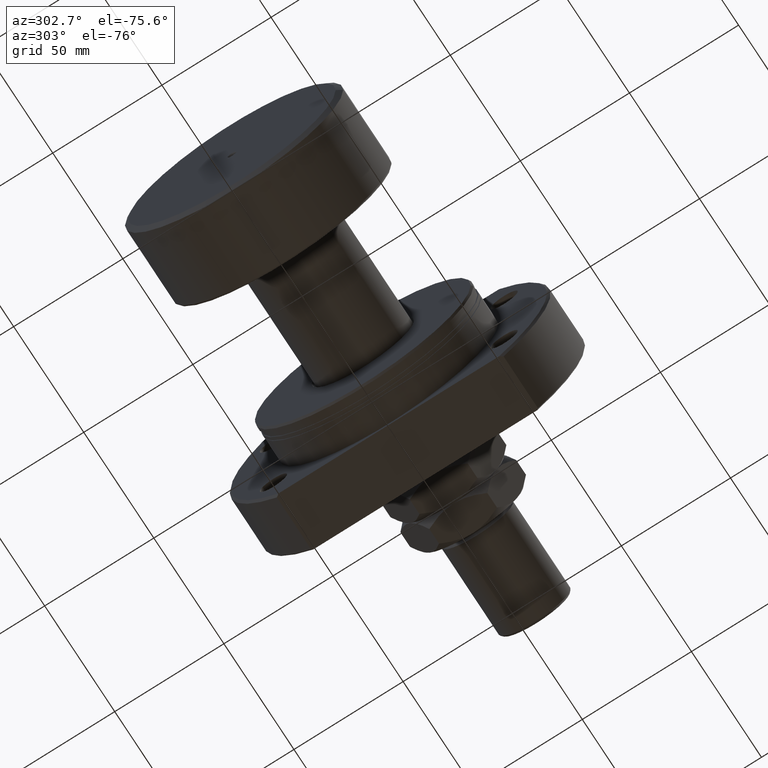
[diagram: clean part render]
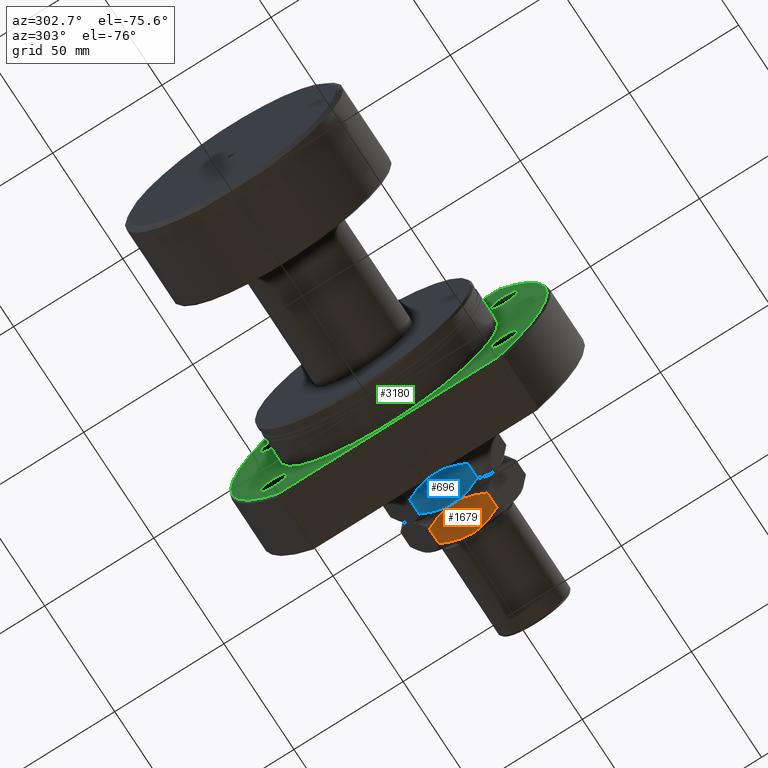
[diagram: same view with three faces highlighted in distinct colors, each labeled with its STEP entity id]
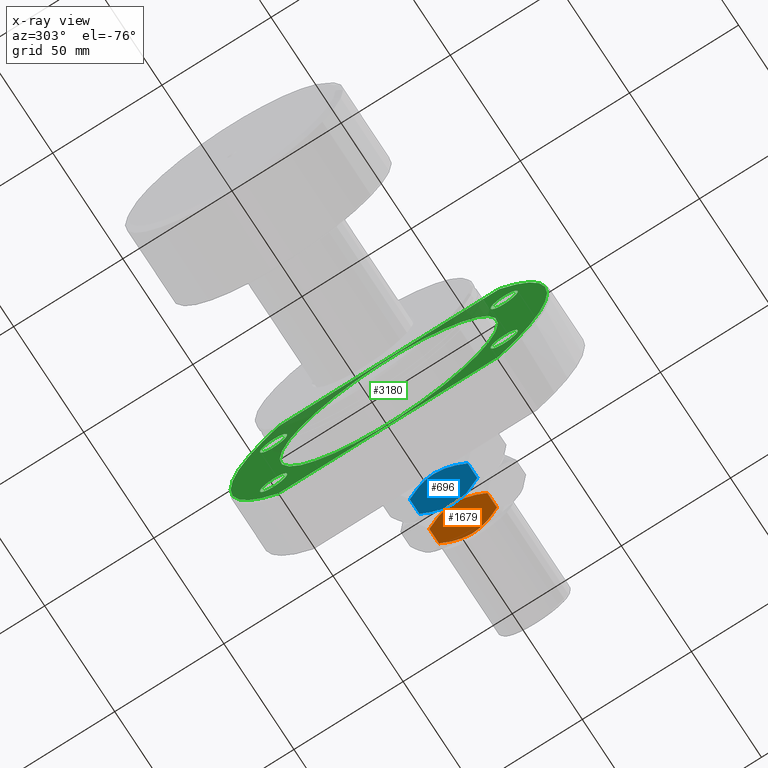
[diagram: x-ray of the same camera — body ghosted, the three highlighted faces saturated]
A machine part, auxiliary view with three faces highlighted in distinct colors.
The next image is the same camera in x-ray (body ghosted, the three faces saturated) — at least one of them is partly hidden behind the body in this view.
Their STEP definitions:

[orange] entity #1679 — the highlighted planar face has unit normal (-0, 0, 1).
#28 = DIRECTION ( 'NONE',  ( -0.000000000000000000, -0.000000000000000000, -1.000000000000000000 ) ) ;
#43 = ORIENTED_EDGE ( 'NONE', *, *, #3921, .F. ) ;
#214 = CARTESIAN_POINT ( 'NONE',  ( 23.00000000000000000, -13.27905619136138959, 28.00000000000000000 ) ) ;
#253 = EDGE_LOOP ( 'NONE', ( #43, #294, #4443, #4006, #2214, #3666 ) ) ;
#264 = CARTESIAN_POINT ( 'NONE',  ( 23.00000000000000355, 4.604003285773385024, 14.35917286671931059 ) ) ;
#294 = ORIENTED_EDGE ( 'NONE', *, *, #1350, .F. ) ;
#470 = VERTEX_POINT ( 'NONE', #1252 ) ;
#565 = B_SPLINE_CURVE_WITH_KNOTS ( 'NONE', 3,
 ( #1824, #1435, #2893, #4758, #2127, #4383, #2523, #264, #642, #3717 ),
 .UNSPECIFIED., .F., .F.,
 ( 4, 2, 2, 2, 4 ),
 ( 0.03391842154671734916, 0.03738166515001972723, 0.03911328695167091973, 0.04084490875332210530, 0.04777139595992687532 ),
 .UNSPECIFIED. ) ;
#642 = CARTESIAN_POINT ( 'NONE',  ( 23.00000000000000355, 2.332866569036886606, 14.00000000000000355 ) ) ;
#651 = CARTESIAN_POINT ( 'NONE',  ( 23.00000000000000000, -13.27905619136138782, 17.55811238272277564 ) ) ;
#654 = CARTESIAN_POINT ( 'NONE',  ( 23.00000000000000000, 13.27905619136138959, 24.44188761727722436 ) ) ;
#698 = CARTESIAN_POINT ( 'NONE',  ( 23.00000000000000000, 13.27905619136138959, 17.55811238272277564 ) ) ;
#700 = CARTESIAN_POINT ( 'NONE',  ( 23.00000000000000355, -4.611258391204995810, 14.43061535182026667 ) ) ;
#731 = CARTESIAN_POINT ( 'NONE',  ( 22.99999999999999289, -9.585014738077486385, 26.08755915768734468 ) ) ;
#754 = CARTESIAN_POINT ( 'NONE',  ( 23.00000000000000000, -12.24963129209447565, 24.95660006691067778 ) ) ;
#852 = CARTESIAN_POINT ( 'NONE',  ( 23.00000000000000000, 1.168850493887465758, 27.97756288437166461 ) ) ;
#880 = CARTESIAN_POINT ( 'NONE',  ( 23.00000000000000355, 11.19584287463890782, 25.43887941699775368 ) ) ;
#907 = LINE ( 'NONE', #3210, #2441 ) ;
#984 = DIRECTION ( 'NONE',  ( -1.000000000000000000, 0.000000000000000000, 0.000000000000000000 ) ) ;
#1096 = CARTESIAN_POINT ( 'NONE',  ( 23.00000000000000000, -13.27905619136138959, 24.44188761727722792 ) ) ;
#1135 = LINE ( 'NONE', #2248, #1340 ) ;
#1194 = B_SPLINE_CURVE_WITH_KNOTS ( 'NONE', 3,
 ( #3677, #2927, #3231, #3307, #4091, #700, #2206, #2182, #4813, #1422, #4067, #651 ),
 .UNSPECIFIED., .F., .F.,
 ( 4, 2, 2, 2, 2, 4 ),
 ( 0.04777139595992687532, 0.04949914554651194121, 0.05122689513309700016, 0.05468239430626712499, 0.05813789347943724983, 0.06159339265260737467 ),
 .UNSPECIFIED. ) ;
#1252 = CARTESIAN_POINT ( 'NONE',  ( 22.99999999999999645, 0.000000000000000000, 14.00000000000000000 ) ) ;
#1271 = CARTESIAN_POINT ( 'NONE',  ( 22.99999999999999645, 0.000000000000000000, 28.00000000000000000 ) ) ;
#1340 = VECTOR ( 'NONE', #28, 1000.000000000000000 ) ;
#1350 = EDGE_CURVE ( 'NONE', #1506, #1897, #907, .T. ) ;
#1355 = PLANE ( 'NONE',  #4031 ) ;
#1422 = CARTESIAN_POINT ( 'NONE',  ( 23.00000000000000355, -11.19584287463890959, 16.56112058300224632 ) ) ;
#1435 = CARTESIAN_POINT ( 'NONE',  ( 22.99999999999999289, 12.24963129209448276, 17.04339993308932222 ) ) ;
#1506 = VERTEX_POINT ( 'NONE', #654 ) ;
#1579 = EDGE_CURVE ( 'NONE', #1588, #3299, #4141, .T. ) ;
#1588 = VERTEX_POINT ( 'NONE', #3012 ) ;
#1667 = CARTESIAN_POINT ( 'NONE',  ( 23.00000000000000000, 2.901718448039539044, 27.82452852895291429 ) ) ;
#1679 = ADVANCED_FACE ( 'NONE', ( #2791 ), #1355, .F. ) ;
#1815 = CARTESIAN_POINT ( 'NONE',  ( 23.00000000000000000, -9.038140464506012606, 26.29329459371818345 ) ) ;
#1824 = CARTESIAN_POINT ( 'NONE',  ( 23.00000000000000000, 13.27905619136138959, 17.55811238272277564 ) ) ;
#1859 = CARTESIAN_POINT ( 'NONE',  ( 22.99999999999999645, 0.000000000000000000, 28.00000000000000000 ) ) ;
#1897 = VERTEX_POINT ( 'NONE', #698 ) ;
#2071 = EDGE_CURVE ( 'NONE', #3299, #1506, #4789, .T. ) ;
#2127 = CARTESIAN_POINT ( 'NONE',  ( 23.00000000000000355, 9.038140464506014382, 15.70670540628181477 ) ) ;
#2182 = CARTESIAN_POINT ( 'NONE',  ( 23.00000000000000355, -7.945847288453419921, 15.31073039083534226 ) ) ;
#2185 = CARTESIAN_POINT ( 'NONE',  ( 23.00000000000000000, -7.937214062685161942, 26.67444397236640086 ) ) ;
#2206 = CARTESIAN_POINT ( 'NONE',  ( 23.00000000000000711, -5.732845801352522308, 14.67996292198422736 ) ) ;
#2214 = ORIENTED_EDGE ( 'NONE', *, *, #3409, .T. ) ;
#2233 = CARTESIAN_POINT ( 'NONE',  ( 23.00000000000000711, -2.332866569036887938, 27.99999999999999645 ) ) ;
#2248 = CARTESIAN_POINT ( 'NONE',  ( 23.00000000000000000, -13.27905619136138959, 28.00000000000000000 ) ) ;
#2260 = CARTESIAN_POINT ( 'NONE',  ( 22.99999999999999645, -7.384104261058114460, 26.84961951312581618 ) ) ;
#2356 = CARTESIAN_POINT ( 'NONE',  ( 22.99999999999999289, 2.327345773459494005, 27.88976552227909878 ) ) ;
#2383 = CARTESIAN_POINT ( 'NONE',  ( 23.00000000000000711, 12.24912306375522242, 24.95685418108031328 ) ) ;
#2405 = CARTESIAN_POINT ( 'NONE',  ( 23.00000000000000000, 5.732845801352522308, 27.32003707801577619 ) ) ;
#2441 = VECTOR ( 'NONE', #3655, 1000.000000000000000 ) ;
#2523 = CARTESIAN_POINT ( 'NONE',  ( 23.00000000000000711, 7.384104261058126895, 15.15038048687418559 ) ) ;
#2608 = CARTESIAN_POINT ( 'NONE',  ( 22.99999999999999645, -11.20010744839417427, 25.43691701641144221 ) ) ;
#2727 = CARTESIAN_POINT ( 'NONE',  ( 23.00000000000000711, 0.5819124658698872077, 28.00000000000000000 ) ) ;
#2777 = CARTESIAN_POINT ( 'NONE',  ( 23.00000000000000355, 4.611258391204997586, 27.56938464817973511 ) ) ;
#2791 = FACE_OUTER_BOUND ( 'NONE', #253, .T. ) ;
#2893 = CARTESIAN_POINT ( 'NONE',  ( 23.00000000000000000, 11.20010744839417782, 16.56308298358856135 ) ) ;
#2895 = CARTESIAN_POINT ( 'NONE',  ( 22.99999999999999645, 0.000000000000000000, 28.00000000000000000 ) ) ;
#2927 = CARTESIAN_POINT ( 'NONE',  ( 23.00000000000001066, -0.5819124658698887620, 14.00000000000000711 ) ) ;
#2932 = EDGE_CURVE ( 'NONE', #470, #4366, #1194, .T. ) ;
#3012 = CARTESIAN_POINT ( 'NONE',  ( 23.00000000000000000, -13.27905619136138959, 24.44188761727722792 ) ) ;
#3210 = CARTESIAN_POINT ( 'NONE',  ( 23.00000000000000000, 13.27905619136138959, 28.00000000000000000 ) ) ;
#3231 = CARTESIAN_POINT ( 'NONE',  ( 23.00000000000000000, -1.168850493887471087, 14.02243711562833184 ) ) ;
#3299 = VERTEX_POINT ( 'NONE', #2895 ) ;
#3307 = CARTESIAN_POINT ( 'NONE',  ( 23.00000000000000000, -2.327345773459499334, 14.11023447772089945 ) ) ;
#3409 = EDGE_CURVE ( 'NONE', #1588, #4366, #1135, .T. ) ;
#3522 = CARTESIAN_POINT ( 'NONE',  ( 23.00000000000000355, 9.037287856520077156, 26.30796566528420399 ) ) ;
#3655 = DIRECTION ( 'NONE',  ( -0.000000000000000000, -0.000000000000000000, -1.000000000000000000 ) ) ;
#3666 = ORIENTED_EDGE ( 'NONE', *, *, #2932, .F. ) ;
#3677 = CARTESIAN_POINT ( 'NONE',  ( 22.99999999999999645, 0.000000000000000000, 14.00000000000000000 ) ) ;
#3717 = CARTESIAN_POINT ( 'NONE',  ( 22.99999999999999645, 0.000000000000000000, 14.00000000000000000 ) ) ;
#3728 = CARTESIAN_POINT ( 'NONE',  ( 23.00000000000000000, -13.27905619136138782, 17.55811238272277564 ) ) ;
#3778 = CARTESIAN_POINT ( 'NONE',  ( 23.00000000000000711, -4.604003285773378806, 27.64082713328069119 ) ) ;
#3921 = EDGE_CURVE ( 'NONE', #1897, #470, #565, .T. ) ;
#3923 = CARTESIAN_POINT ( 'NONE',  ( 22.99999999999999645, 7.945847288453418145, 26.68926960916466129 ) ) ;
#4006 = ORIENTED_EDGE ( 'NONE', *, *, #1579, .F. ) ;
#4011 = DIRECTION ( 'NONE',  ( 0.000000000000000000, 0.000000000000000000, 1.000000000000000000 ) ) ;
#4031 = AXIS2_PLACEMENT_3D ( 'NONE', #214, #984, #4011 ) ;
#4067 = CARTESIAN_POINT ( 'NONE',  ( 23.00000000000000711, -12.24912306375521531, 17.04314581891969382 ) ) ;
#4091 = CARTESIAN_POINT ( 'NONE',  ( 23.00000000000000355, -2.901718448039537712, 14.17547147104708571 ) ) ;
#4141 = B_SPLINE_CURVE_WITH_KNOTS ( 'NONE', 3,
 ( #1096, #754, #2608, #731, #1815, #2185, #2260, #3778, #2233, #1859 ),
 .UNSPECIFIED., .F., .F.,
 ( 4, 2, 2, 2, 4 ),
 ( 0.03391842154671734916, 0.03738166515001972723, 0.03911328695167091973, 0.04084490875332210530, 0.04777139595992686838 ),
 .UNSPECIFIED. ) ;
#4366 = VERTEX_POINT ( 'NONE', #3728 ) ;
#4383 = CARTESIAN_POINT ( 'NONE',  ( 23.00000000000001066, 7.937214062685167271, 15.32555602763360092 ) ) ;
#4443 = ORIENTED_EDGE ( 'NONE', *, *, #2071, .F. ) ;
#4689 = CARTESIAN_POINT ( 'NONE',  ( 23.00000000000000000, 13.27905619136138959, 24.44188761727722436 ) ) ;
#4758 = CARTESIAN_POINT ( 'NONE',  ( 22.99999999999999289, 9.585014738077491714, 15.91244084231266420 ) ) ;
#4789 = B_SPLINE_CURVE_WITH_KNOTS ( 'NONE', 3,
 ( #1271, #2727, #852, #2356, #1667, #2777, #2405, #3923, #3522, #880, #2383, #4689 ),
 .UNSPECIFIED., .F., .F.,
 ( 4, 2, 2, 2, 2, 4 ),
 ( 0.04777139595992686838, 0.04949914554651193427, 0.05122689513309699322, 0.05468239430626712499, 0.05813789347943724983, 0.06159339265260738161 ),
 .UNSPECIFIED. ) ;
#4813 = CARTESIAN_POINT ( 'NONE',  ( 23.00000000000000355, -9.037287856520078932, 15.69203433471579778 ) ) ;

[blue] entity #696 — the highlighted planar face has unit normal (-0, 0, 1).
#10 = ORIENTED_EDGE ( 'NONE', *, *, #1526, .F. ) ;
#51 = CARTESIAN_POINT ( 'NONE',  ( 23.00000000000000000, -2.901297070256888322, 0.1754240326198526490 ) ) ;
#287 = ORIENTED_EDGE ( 'NONE', *, *, #4059, .F. ) ;
#293 = AXIS2_PLACEMENT_3D ( 'NONE', #1785, #4439, #3698 ) ;
#322 = FACE_OUTER_BOUND ( 'NONE', #1117, .T. ) ;
#325 = CARTESIAN_POINT ( 'NONE',  ( 23.00000000000000355, 4.610166311818702845, 13.56957851360674283 ) ) ;
#328 = CARTESIAN_POINT ( 'NONE',  ( 23.00000000000000355, 7.935615110598574162, 1.325049712495167231 ) ) ;
#397 = CARTESIAN_POINT ( 'NONE',  ( 23.00000000000000355, -9.036340143478451381, 1.691672435289179210 ) ) ;
#429 = B_SPLINE_CURVE_WITH_KNOTS ( 'NONE', 3,
 ( #1001, #2509, #1024, #2534, #4027, #325, #2624, #1119, #3446, #4170, #4117, #3058 ),
 .UNSPECIFIED., .F., .F.,
 ( 4, 2, 2, 2, 2, 4 ),
 ( 0.04844648401189700221, 0.05017495495687852858, 0.05190342590186006189, 0.05536036779182312156, 0.05881730968178618124, 0.06227425157174924786 ),
 .UNSPECIFIED. ) ;
#470 = VERTEX_POINT ( 'NONE', #1252 ) ;
#657 = CARTESIAN_POINT ( 'NONE',  ( 23.00000000000000355, -7.383193414690654599, 12.84988593970195225 ) ) ;
#696 = ADVANCED_FACE ( 'NONE', ( #322 ), #1742, .F. ) ;
#721 = VERTEX_POINT ( 'NONE', #3651 ) ;
#727 = EDGE_CURVE ( 'NONE', #3521, #721, #2877, .T. ) ;
#766 = CARTESIAN_POINT ( 'NONE',  ( 23.00000000000000000, -13.27905619136139670, 3.558112382722774303 ) ) ;
#792 = VERTEX_POINT ( 'NONE', #4634 ) ;
#818 = CARTESIAN_POINT ( 'NONE',  ( 23.00000000000000000, -1.169461507161065006, 0.02247740987888321648 ) ) ;
#845 = CARTESIAN_POINT ( 'NONE',  ( 23.00000000000000000, -5.731580876109816813, 0.6796544745458226178 ) ) ;
#1001 = CARTESIAN_POINT ( 'NONE',  ( 22.99999999999999645, 0.000000000000000000, 14.00000000000000000 ) ) ;
#1021 = DIRECTION ( 'NONE',  ( -0.000000000000000000, -0.000000000000000000, -1.000000000000000000 ) ) ;
#1024 = CARTESIAN_POINT ( 'NONE',  ( 23.00000000000000000, 1.169461507161060787, 13.97752259012112042 ) ) ;
#1117 = EDGE_LOOP ( 'NONE', ( #10, #2496, #3045, #4723, #3224, #287 ) ) ;
#1119 = CARTESIAN_POINT ( 'NONE',  ( 23.00000000000000000, 7.944654633855236625, 12.68966158306866987 ) ) ;
#1154 = EDGE_CURVE ( 'NONE', #792, #470, #2591, .T. ) ;
#1239 = LINE ( 'NONE', #2242, #4822 ) ;
#1252 = CARTESIAN_POINT ( 'NONE',  ( 22.99999999999999645, 0.000000000000000000, 14.00000000000000000 ) ) ;
#1256 = VERTEX_POINT ( 'NONE', #4652 ) ;
#1431 = CARTESIAN_POINT ( 'NONE',  ( 23.00000000000000000, -13.27905619136139670, 10.44188761727722969 ) ) ;
#1473 = CARTESIAN_POINT ( 'NONE',  ( 23.00000000000000000, 0.000000000000000000, 0.000000000000000000 ) ) ;
#1476 = CARTESIAN_POINT ( 'NONE',  ( 23.00000000000000355, -2.335256030405480132, 14.00000000000000355 ) ) ;
#1526 = EDGE_CURVE ( 'NONE', #721, #1256, #4489, .T. ) ;
#1742 = PLANE ( 'NONE',  #293 ) ;
#1785 = CARTESIAN_POINT ( 'NONE',  ( 23.00000000000000000, -13.27905619136139670, 14.00000000000000000 ) ) ;
#1820 = CARTESIAN_POINT ( 'NONE',  ( 23.00000000000000355, -9.034960763048697885, 12.29444248106046267 ) ) ;
#1835 = CARTESIAN_POINT ( 'NONE',  ( 23.00000000000000000, 2.335256030405475691, -1.084202172485503818E-16 ) ) ;
#1845 = CARTESIAN_POINT ( 'NONE',  ( 23.00000000000000711, -12.24893264259406855, 3.043050608339112006 ) ) ;
#1870 = CARTESIAN_POINT ( 'NONE',  ( 23.00000000000000355, -4.610166311818710838, 0.4304214863932612212 ) ) ;
#1954 = CARTESIAN_POINT ( 'NONE',  ( 22.99999999999999289, -2.327216729774864490, 0.1102307123705726921 ) ) ;
#2148 = VERTEX_POINT ( 'NONE', #4505 ) ;
#2210 = CARTESIAN_POINT ( 'NONE',  ( 23.00000000000000000, 13.27905619136139137, 3.558112382722770750 ) ) ;
#2225 = CARTESIAN_POINT ( 'NONE',  ( 23.00000000000000000, 13.27905619136139137, 14.00000000000000000 ) ) ;
#2242 = CARTESIAN_POINT ( 'NONE',  ( 23.00000000000000000, -13.27905619136139670, 14.00000000000000000 ) ) ;
#2271 = CARTESIAN_POINT ( 'NONE',  ( 23.00000000000000711, -0.5827685162635674043, 2.710505431213758312E-17 ) ) ;
#2322 = EDGE_CURVE ( 'NONE', #792, #2148, #1239, .T. ) ;
#2496 = ORIENTED_EDGE ( 'NONE', *, *, #727, .F. ) ;
#2509 = CARTESIAN_POINT ( 'NONE',  ( 23.00000000000000711, 0.5827685162635629634, 14.00000000000000178 ) ) ;
#2534 = CARTESIAN_POINT ( 'NONE',  ( 22.99999999999999289, 2.327216729774860937, 13.88976928762942542 ) ) ;
#2542 = CARTESIAN_POINT ( 'NONE',  ( 23.00000000000000355, -11.19894991158976438, 11.43745981042313353 ) ) ;
#2555 = CARTESIAN_POINT ( 'NONE',  ( 23.00000000000000355, 12.24914829647811132, 3.043158435281133389 ) ) ;
#2582 = CARTESIAN_POINT ( 'NONE',  ( 22.99999999999999645, 0.000000000000000000, 14.00000000000000000 ) ) ;
#2591 = B_SPLINE_CURVE_WITH_KNOTS ( 'NONE', 3,
 ( #1431, #3385, #2542, #2962, #1820, #3734, #657, #2633, #1476, #2582 ),
 .UNSPECIFIED., .F., .F.,
 ( 4, 2, 2, 2, 4 ),
 ( 0.03459390932742917313, 0.03805705299854612866, 0.03978862483410460643, 0.04152019666966308420, 0.04844648401189700221 ),
 .UNSPECIFIED. ) ;
#2624 = CARTESIAN_POINT ( 'NONE',  ( 23.00000000000000355, 5.731580876109815037, 13.32034552545418293 ) ) ;
#2633 = CARTESIAN_POINT ( 'NONE',  ( 23.00000000000000000, -4.605953494949545757, 13.64024328841524181 ) ) ;
#2695 = CARTESIAN_POINT ( 'NONE',  ( 23.00000000000000000, 0.000000000000000000, 0.000000000000000000 ) ) ;
#2877 = LINE ( 'NONE', #2225, #2988 ) ;
#2931 = CARTESIAN_POINT ( 'NONE',  ( 23.00000000000000355, 11.19894991158976083, 2.562540189576865135 ) ) ;
#2962 = CARTESIAN_POINT ( 'NONE',  ( 23.00000000000000000, -9.582397350857389640, 12.08857522249926753 ) ) ;
#2988 = VECTOR ( 'NONE', #1021, 1000.000000000000000 ) ;
#3005 = EDGE_CURVE ( 'NONE', #470, #3521, #429, .T. ) ;
#3045 = ORIENTED_EDGE ( 'NONE', *, *, #3005, .F. ) ;
#3058 = CARTESIAN_POINT ( 'NONE',  ( 23.00000000000000000, 13.27905619136139137, 10.44188761727723147 ) ) ;
#3149 = CARTESIAN_POINT ( 'NONE',  ( 23.00000000000000000, 13.27905619136139137, 10.44188761727723147 ) ) ;
#3212 = B_SPLINE_CURVE_WITH_KNOTS ( 'NONE', 3,
 ( #2695, #2271, #818, #1954, #51, #1870, #845, #3792, #397, #3464, #1845, #766 ),
 .UNSPECIFIED., .F., .F.,
 ( 4, 2, 2, 2, 2, 4 ),
 ( 0.04844648401189699527, 0.05017495495687852858, 0.05190342590186005495, 0.05536036779182312156, 0.05881730968178618124, 0.06227425157174924786 ),
 .UNSPECIFIED. ) ;
#3224 = ORIENTED_EDGE ( 'NONE', *, *, #2322, .T. ) ;
#3354 = CARTESIAN_POINT ( 'NONE',  ( 22.99999999999999289, 9.582397350857380758, 1.911424777500733141 ) ) ;
#3385 = CARTESIAN_POINT ( 'NONE',  ( 23.00000000000000000, -12.24914829647811487, 10.95684156471887327 ) ) ;
#3446 = CARTESIAN_POINT ( 'NONE',  ( 23.00000000000000711, 9.036340143478453157, 12.30832756471083123 ) ) ;
#3464 = CARTESIAN_POINT ( 'NONE',  ( 23.00000000000000355, -11.19569807237882841, 2.561042619401230347 ) ) ;
#3521 = VERTEX_POINT ( 'NONE', #3149 ) ;
#3651 = CARTESIAN_POINT ( 'NONE',  ( 23.00000000000000000, 13.27905619136139137, 3.558112382722770750 ) ) ;
#3698 = DIRECTION ( 'NONE',  ( 0.000000000000000000, 0.000000000000000000, 1.000000000000000000 ) ) ;
#3730 = CARTESIAN_POINT ( 'NONE',  ( 23.00000000000000000, 9.034960763048690779, 1.705557518939540884 ) ) ;
#3734 = CARTESIAN_POINT ( 'NONE',  ( 23.00000000000000355, -7.935615110598578603, 12.67495028750483854 ) ) ;
#3761 = DIRECTION ( 'NONE',  ( -0.000000000000000000, -0.000000000000000000, -1.000000000000000000 ) ) ;
#3792 = CARTESIAN_POINT ( 'NONE',  ( 22.99999999999999645, -7.944654633855234849, 1.310338416931336125 ) ) ;
#4027 = CARTESIAN_POINT ( 'NONE',  ( 23.00000000000000000, 2.901297070256877220, 13.82457596738015049 ) ) ;
#4059 = EDGE_CURVE ( 'NONE', #1256, #2148, #3212, .T. ) ;
#4117 = CARTESIAN_POINT ( 'NONE',  ( 23.00000000000000355, 12.24893264259405790, 10.95694939166089732 ) ) ;
#4149 = CARTESIAN_POINT ( 'NONE',  ( 23.00000000000000355, 4.605953494949539540, 0.3597567115847576380 ) ) ;
#4170 = CARTESIAN_POINT ( 'NONE',  ( 23.00000000000000711, 11.19569807237882308, 11.43895738059878120 ) ) ;
#4439 = DIRECTION ( 'NONE',  ( -1.000000000000000000, 0.000000000000000000, 0.000000000000000000 ) ) ;
#4489 = B_SPLINE_CURVE_WITH_KNOTS ( 'NONE', 3,
 ( #2210, #2555, #2931, #3354, #3730, #328, #4495, #4149, #1835, #1473 ),
 .UNSPECIFIED., .F., .F.,
 ( 4, 2, 2, 2, 4 ),
 ( 0.03459390932742917313, 0.03805705299854612172, 0.03978862483410459949, 0.04152019666966307726, 0.04844648401189699527 ),
 .UNSPECIFIED. ) ;
#4495 = CARTESIAN_POINT ( 'NONE',  ( 23.00000000000000711, 7.383193414690649270, 1.150114060298049745 ) ) ;
#4505 = CARTESIAN_POINT ( 'NONE',  ( 23.00000000000000000, -13.27905619136139670, 3.558112382722774303 ) ) ;
#4634 = CARTESIAN_POINT ( 'NONE',  ( 23.00000000000000000, -13.27905619136139670, 10.44188761727722969 ) ) ;
#4652 = CARTESIAN_POINT ( 'NONE',  ( 23.00000000000000000, 0.000000000000000000, 0.000000000000000000 ) ) ;
#4723 = ORIENTED_EDGE ( 'NONE', *, *, #1154, .F. ) ;
#4822 = VECTOR ( 'NONE', #3761, 1000.000000000000000 ) ;

[green] entity #3180 — the highlighted planar face has unit normal (1, 0, 0).
#36 = EDGE_CURVE ( 'NONE', #3367, #968, #4801, .T. ) ;
#40 = CIRCLE ( 'NONE', #1934, 6.249999999999998224 ) ;
#64 = CARTESIAN_POINT ( 'NONE',  ( 18.50000000000000355, -50.00000000000000000, 6.123233995736766085E-15 ) ) ;
#71 = EDGE_CURVE ( 'NONE', #415, #3042, #1716, .T. ) ;
#134 = FACE_OUTER_BOUND ( 'NONE', #3483, .T. ) ;
#148 = DIRECTION ( 'NONE',  ( 1.000000000000000000, 5.504030557965630938E-17, -0.000000000000000000 ) ) ;
#177 = CARTESIAN_POINT ( 'NONE',  ( 18.50000000000000711, -50.00000000000000000, 52.00000000000000000 ) ) ;
#217 = EDGE_CURVE ( 'NONE', #2043, #2787, #1792, .T. ) ;
#256 = DIRECTION ( 'NONE',  ( 1.000000000000000000, 5.504030557965630938E-17, -0.000000000000000000 ) ) ;
#266 = VERTEX_POINT ( 'NONE', #2184 ) ;
#364 = AXIS2_PLACEMENT_3D ( 'NONE', #2046, #2862, #1373 ) ;
#380 = EDGE_CURVE ( 'NONE', #4569, #815, #4330, .T. ) ;
#415 = VERTEX_POINT ( 'NONE', #434 ) ;
#434 = CARTESIAN_POINT ( 'NONE',  ( 18.50000000000000711, -59.10000000000053433, -30.50000000000000000 ) ) ;
#478 = EDGE_CURVE ( 'NONE', #815, #4569, #3463, .T. ) ;
#511 = DIRECTION ( 'NONE',  ( 1.000000000000000000, 5.504030557965630938E-17, -0.000000000000000000 ) ) ;
#533 = DIRECTION ( 'NONE',  ( 1.000000000000000000, 5.504030557965630938E-17, -0.000000000000000000 ) ) ;
#536 = CARTESIAN_POINT ( 'NONE',  ( 18.50000000000000711, -52.85000000000053433, -30.50000000000000000 ) ) ;
#559 = FACE_BOUND ( 'NONE', #1098, .T. ) ;
#563 = DIRECTION ( 'NONE',  ( 0.000000000000000000, 1.000000000000000000, 0.000000000000000000 ) ) ;
#585 = CARTESIAN_POINT ( 'NONE',  ( 18.50000000000000000, 52.84999999999946851, -30.50000000000000000 ) ) ;
#621 = AXIS2_PLACEMENT_3D ( 'NONE', #4825, #4057, #1863 ) ;
#630 = DIRECTION ( 'NONE',  ( 0.000000000000000000, 1.000000000000000000, 0.000000000000000000 ) ) ;
#674 = DIRECTION ( 'NONE',  ( 1.000000000000000000, 5.504030557965630938E-17, -0.000000000000000000 ) ) ;
#815 = VERTEX_POINT ( 'NONE', #1636 ) ;
#863 = EDGE_CURVE ( 'NONE', #3370, #266, #1965, .T. ) ;
#874 = CARTESIAN_POINT ( 'NONE',  ( 18.50000000000000711, 1.018245653223641951E-15, 0.000000000000000000 ) ) ;
#901 = CARTESIAN_POINT ( 'NONE',  ( 18.50000000000000000, 52.84999999999947562, 30.50000000000000000 ) ) ;
#926 = EDGE_CURVE ( 'NONE', #2540, #2730, #3626, .T. ) ;
#935 = CIRCLE ( 'NONE', #621, 50.00000000000000000 ) ;
#957 = DIRECTION ( 'NONE',  ( 0.000000000000000000, 1.000000000000000000, 0.000000000000000000 ) ) ;
#968 = VERTEX_POINT ( 'NONE', #3292 ) ;
#1006 = AXIS2_PLACEMENT_3D ( 'NONE', #536, #511, #3560 ) ;
#1053 = DIRECTION ( 'NONE',  ( 5.504030557965630938E-17, -1.000000000000000000, 0.000000000000000000 ) ) ;
#1098 = EDGE_LOOP ( 'NONE', ( #4761, #3615 ) ) ;
#1147 = EDGE_CURVE ( 'NONE', #2730, #2540, #935, .T. ) ;
#1163 = CARTESIAN_POINT ( 'NONE',  ( 18.50000000000000355, 50.51979809935892263, -52.00000000000000000 ) ) ;
#1248 = PLANE ( 'NONE',  #4270 ) ;
#1255 = CARTESIAN_POINT ( 'NONE',  ( 18.50000000000000000, 52.84999999999946851, -30.50000000000000000 ) ) ;
#1261 = AXIS2_PLACEMENT_3D ( 'NONE', #585, #4254, #2367 ) ;
#1294 = FACE_BOUND ( 'NONE', #3087, .T. ) ;
#1307 = CARTESIAN_POINT ( 'NONE',  ( 18.50000000000000355, 50.51979809935892263, 52.00000000000000000 ) ) ;
#1309 = DIRECTION ( 'NONE',  ( -6.938893903907228378E-17, 1.000000000000000000, 0.000000000000000000 ) ) ;
#1318 = DIRECTION ( 'NONE',  ( 0.000000000000000000, 1.000000000000000000, 0.000000000000000000 ) ) ;
#1337 = CIRCLE ( 'NONE', #3162, 6.249999999999998224 ) ;
#1373 = DIRECTION ( 'NONE',  ( -4.785444071660162135E-17, 1.000000000000000000, 0.000000000000000000 ) ) ;
#1403 = ORIENTED_EDGE ( 'NONE', *, *, #36, .F. ) ;
#1420 = AXIS2_PLACEMENT_3D ( 'NONE', #3170, #2471, #2865 ) ;
#1439 = ORIENTED_EDGE ( 'NONE', *, *, #4675, .T. ) ;
#1481 = AXIS2_PLACEMENT_3D ( 'NONE', #4203, #2362, #3061 ) ;
#1636 = CARTESIAN_POINT ( 'NONE',  ( 18.50000000000000711, -46.60000000000052722, 30.50000000000000000 ) ) ;
#1690 = VERTEX_POINT ( 'NONE', #1307 ) ;
#1716 = CIRCLE ( 'NONE', #1006, 6.249999999999998224 ) ;
#1726 = EDGE_LOOP ( 'NONE', ( #1735, #4232 ) ) ;
#1735 = ORIENTED_EDGE ( 'NONE', *, *, #478, .T. ) ;
#1777 = LINE ( 'NONE', #3691, #3752 ) ;
#1792 = CIRCLE ( 'NONE', #2824, 6.249999999999998224 ) ;
#1802 = EDGE_LOOP ( 'NONE', ( #2389, #3746 ) ) ;
#1834 = DIRECTION ( 'NONE',  ( 0.000000000000000000, 1.000000000000000000, 0.000000000000000000 ) ) ;
#1863 = DIRECTION ( 'NONE',  ( -6.938893903907228378E-17, 1.000000000000000000, 0.000000000000000000 ) ) ;
#1934 = AXIS2_PLACEMENT_3D ( 'NONE', #4418, #2090, #957 ) ;
#1939 = CARTESIAN_POINT ( 'NONE',  ( 18.50000000000000000, 59.09999999999946851, -30.50000000000000000 ) ) ;
#1965 = CIRCLE ( 'NONE', #2514, 72.49999999999992895 ) ;
#2022 = CARTESIAN_POINT ( 'NONE',  ( 18.50000000000000000, 46.59999999999947562, 30.50000000000000000 ) ) ;
#2043 = VERTEX_POINT ( 'NONE', #3177 ) ;
#2046 = CARTESIAN_POINT ( 'NONE',  ( 18.50000000000000711, 1.018245653223641951E-15, 0.000000000000000000 ) ) ;
#2090 = DIRECTION ( 'NONE',  ( 1.000000000000000000, 5.504030557965630938E-17, -0.000000000000000000 ) ) ;
#2096 = EDGE_CURVE ( 'NONE', #1690, #3370, #4827, .T. ) ;
#2184 = CARTESIAN_POINT ( 'NONE',  ( 18.50000000000000711, -50.51979809935892263, -52.00000000000000000 ) ) ;
#2357 = DIRECTION ( 'NONE',  ( 1.000000000000000000, 5.504030557965630938E-17, -0.000000000000000000 ) ) ;
#2362 = DIRECTION ( 'NONE',  ( 1.000000000000000000, 5.504030557965630938E-17, -0.000000000000000000 ) ) ;
#2367 = DIRECTION ( 'NONE',  ( 0.000000000000000000, 1.000000000000000000, 0.000000000000000000 ) ) ;
#2380 = CARTESIAN_POINT ( 'NONE',  ( 18.50000000000000000, 1.018245653223641557E-15, 0.000000000000000000 ) ) ;
#2384 = FACE_BOUND ( 'NONE', #4623, .T. ) ;
#2389 = ORIENTED_EDGE ( 'NONE', *, *, #926, .T. ) ;
#2418 = EDGE_CURVE ( 'NONE', #968, #1690, #3559, .T. ) ;
#2471 = DIRECTION ( 'NONE',  ( 1.000000000000000000, 5.504030557965630938E-17, -0.000000000000000000 ) ) ;
#2514 = AXIS2_PLACEMENT_3D ( 'NONE', #874, #148, #4878 ) ;
#2526 = VECTOR ( 'NONE', #1053, 1000.000000000000000 ) ;
#2540 = VERTEX_POINT ( 'NONE', #4820 ) ;
#2668 = AXIS2_PLACEMENT_3D ( 'NONE', #2380, #3990, #1309 ) ;
#2730 = VERTEX_POINT ( 'NONE', #64 ) ;
#2787 = VERTEX_POINT ( 'NONE', #2022 ) ;
#2824 = AXIS2_PLACEMENT_3D ( 'NONE', #4791, #256, #1834 ) ;
#2825 = FACE_BOUND ( 'NONE', #1726, .T. ) ;
#2828 = AXIS2_PLACEMENT_3D ( 'NONE', #4321, #533, #563 ) ;
#2862 = DIRECTION ( 'NONE',  ( 1.000000000000000000, 5.504030557965630938E-17, -0.000000000000000000 ) ) ;
#2865 = DIRECTION ( 'NONE',  ( -4.785444071660162135E-17, 1.000000000000000000, 0.000000000000000000 ) ) ;
#2883 = EDGE_CURVE ( 'NONE', #4379, #4651, #3083, .T. ) ;
#2910 = EDGE_CURVE ( 'NONE', #4651, #4379, #1337, .T. ) ;
#3042 = VERTEX_POINT ( 'NONE', #3086 ) ;
#3061 = DIRECTION ( 'NONE',  ( 0.000000000000000000, 1.000000000000000000, 0.000000000000000000 ) ) ;
#3083 = CIRCLE ( 'NONE', #1261, 6.249999999999998224 ) ;
#3086 = CARTESIAN_POINT ( 'NONE',  ( 18.50000000000000711, -46.60000000000053433, -30.50000000000000000 ) ) ;
#3087 = EDGE_LOOP ( 'NONE', ( #3415, #3412 ) ) ;
#3162 = AXIS2_PLACEMENT_3D ( 'NONE', #1255, #674, #630 ) ;
#3170 = CARTESIAN_POINT ( 'NONE',  ( 18.50000000000000711, 1.018245653223641951E-15, 0.000000000000000000 ) ) ;
#3177 = CARTESIAN_POINT ( 'NONE',  ( 18.50000000000000000, 59.09999999999947562, 30.50000000000000000 ) ) ;
#3180 = ADVANCED_FACE ( 'NONE', ( #2384, #2825, #559, #1294, #4642, #134 ), #1248, .F. ) ;
#3247 = DIRECTION ( 'NONE',  ( 5.504030557965630938E-17, -1.000000000000000000, 0.000000000000000000 ) ) ;
#3292 = CARTESIAN_POINT ( 'NONE',  ( 18.50000000000000355, 72.49999999999992895, 0.000000000000000000 ) ) ;
#3367 = VERTEX_POINT ( 'NONE', #1163 ) ;
#3370 = VERTEX_POINT ( 'NONE', #3796 ) ;
#3412 = ORIENTED_EDGE ( 'NONE', *, *, #2883, .T. ) ;
#3415 = ORIENTED_EDGE ( 'NONE', *, *, #2910, .T. ) ;
#3463 = CIRCLE ( 'NONE', #2828, 6.249999999999998224 ) ;
#3476 = CARTESIAN_POINT ( 'NONE',  ( 18.50000000000000711, -59.10000000000052722, 30.50000000000000000 ) ) ;
#3483 = EDGE_LOOP ( 'NONE', ( #4845, #3509, #1403, #4831, #4808 ) ) ;
#3509 = ORIENTED_EDGE ( 'NONE', *, *, #2418, .F. ) ;
#3524 = CIRCLE ( 'NONE', #4549, 6.249999999999998224 ) ;
#3559 = CIRCLE ( 'NONE', #1420, 72.49999999999992895 ) ;
#3560 = DIRECTION ( 'NONE',  ( 0.000000000000000000, 1.000000000000000000, 0.000000000000000000 ) ) ;
#3615 = ORIENTED_EDGE ( 'NONE', *, *, #71, .T. ) ;
#3626 = CIRCLE ( 'NONE', #2668, 50.00000000000000000 ) ;
#3691 = CARTESIAN_POINT ( 'NONE',  ( 18.50000000000000711, -50.00000000000000000, -52.00000000000000000 ) ) ;
#3746 = ORIENTED_EDGE ( 'NONE', *, *, #1147, .T. ) ;
#3752 = VECTOR ( 'NONE', #3247, 1000.000000000000000 ) ;
#3775 = CARTESIAN_POINT ( 'NONE',  ( 18.50000000000000000, 46.59999999999946851, -30.50000000000000000 ) ) ;
#3796 = CARTESIAN_POINT ( 'NONE',  ( 18.50000000000000711, -50.51979809935892263, 52.00000000000000000 ) ) ;
#3974 = EDGE_CURVE ( 'NONE', #3367, #266, #1777, .T. ) ;
#3990 = DIRECTION ( 'NONE',  ( 1.000000000000000000, 5.504030557965630938E-17, -0.000000000000000000 ) ) ;
#4057 = DIRECTION ( 'NONE',  ( 1.000000000000000000, 5.504030557965630938E-17, -0.000000000000000000 ) ) ;
#4203 = CARTESIAN_POINT ( 'NONE',  ( 18.50000000000000711, -52.85000000000052722, 30.50000000000000000 ) ) ;
#4226 = EDGE_CURVE ( 'NONE', #3042, #415, #40, .T. ) ;
#4232 = ORIENTED_EDGE ( 'NONE', *, *, #380, .T. ) ;
#4254 = DIRECTION ( 'NONE',  ( 1.000000000000000000, 5.504030557965630938E-17, -0.000000000000000000 ) ) ;
#4270 = AXIS2_PLACEMENT_3D ( 'NONE', #4667, #2357, #4274 ) ;
#4274 = DIRECTION ( 'NONE',  ( -5.504030557965630938E-17, 1.000000000000000000, 0.000000000000000000 ) ) ;
#4321 = CARTESIAN_POINT ( 'NONE',  ( 18.50000000000000711, -52.85000000000052722, 30.50000000000000000 ) ) ;
#4330 = CIRCLE ( 'NONE', #1481, 6.249999999999998224 ) ;
#4379 = VERTEX_POINT ( 'NONE', #3775 ) ;
#4418 = CARTESIAN_POINT ( 'NONE',  ( 18.50000000000000711, -52.85000000000053433, -30.50000000000000000 ) ) ;
#4528 = ORIENTED_EDGE ( 'NONE', *, *, #217, .T. ) ;
#4549 = AXIS2_PLACEMENT_3D ( 'NONE', #901, #4714, #1318 ) ;
#4569 = VERTEX_POINT ( 'NONE', #3476 ) ;
#4623 = EDGE_LOOP ( 'NONE', ( #4528, #1439 ) ) ;
#4642 = FACE_BOUND ( 'NONE', #1802, .T. ) ;
#4651 = VERTEX_POINT ( 'NONE', #1939 ) ;
#4667 = CARTESIAN_POINT ( 'NONE',  ( 18.50000000000000711, -50.00000000000000000, 0.000000000000000000 ) ) ;
#4675 = EDGE_CURVE ( 'NONE', #2787, #2043, #3524, .T. ) ;
#4714 = DIRECTION ( 'NONE',  ( 1.000000000000000000, 5.504030557965630938E-17, -0.000000000000000000 ) ) ;
#4761 = ORIENTED_EDGE ( 'NONE', *, *, #4226, .T. ) ;
#4791 = CARTESIAN_POINT ( 'NONE',  ( 18.50000000000000000, 52.84999999999947562, 30.50000000000000000 ) ) ;
#4801 = CIRCLE ( 'NONE', #364, 72.49999999999992895 ) ;
#4808 = ORIENTED_EDGE ( 'NONE', *, *, #863, .F. ) ;
#4820 = CARTESIAN_POINT ( 'NONE',  ( 18.49999999999999645, 50.00000000000000000, 0.000000000000000000 ) ) ;
#4825 = CARTESIAN_POINT ( 'NONE',  ( 18.50000000000000000, 1.018245653223641557E-15, 0.000000000000000000 ) ) ;
#4827 = LINE ( 'NONE', #177, #2526 ) ;
#4831 = ORIENTED_EDGE ( 'NONE', *, *, #3974, .T. ) ;
#4845 = ORIENTED_EDGE ( 'NONE', *, *, #2096, .F. ) ;
#4878 = DIRECTION ( 'NONE',  ( -4.785444071660162135E-17, 1.000000000000000000, 0.000000000000000000 ) ) ;